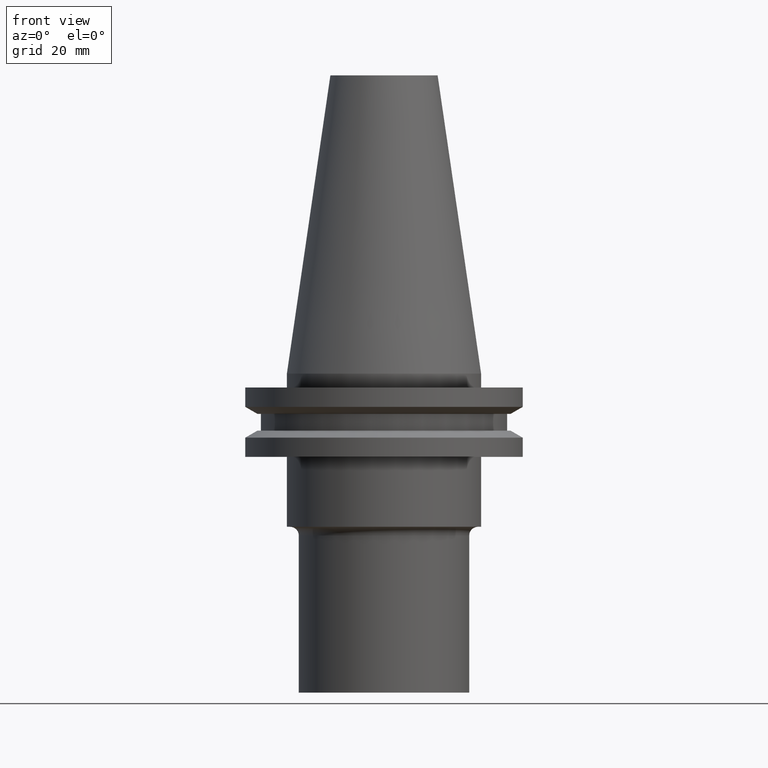
[diagram: clean part render]
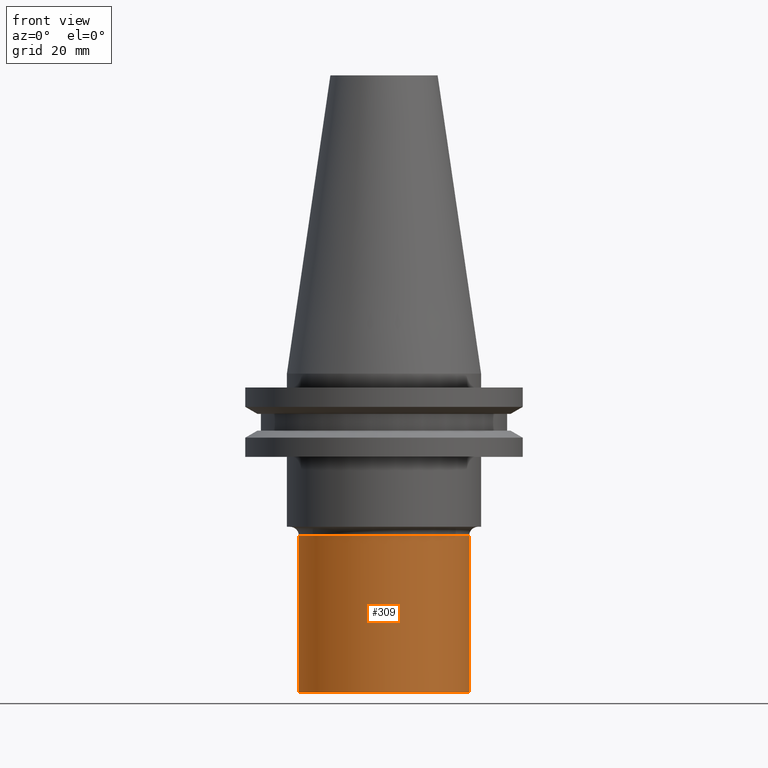
[diagram: same view with one face highlighted and labeled with its STEP entity id]
A machine part, front view. The second image highlights one B-rep face of the part: STEP entity #309.
In plain terms, the highlighted cylindrical surface (partial cylindrical patch) has radius 19.5 mm, axis along (-0, -0, 1).
Its self-contained STEP definition (entity closure, byte-faithful):
#6 = AXIS2_PLACEMENT_3D ( 'NONE', #472, #660, #467 ) ;
#16 = CIRCLE ( 'NONE', #6, 19.50000000000000000 ) ;
#19 = CIRCLE ( 'NONE', #151, 19.50000000000000000 ) ;
#29 = EDGE_CURVE ( 'NONE', #249, #703, #19, .T. ) ;
#37 = DIRECTION ( 'NONE',  ( -0.000000000000000000, -0.000000000000000000, 1.000000000000000000 ) ) ;
#56 = VERTEX_POINT ( 'NONE', #500 ) ;
#132 = ORIENTED_EDGE ( 'NONE', *, *, #580, .F. ) ;
#134 = DIRECTION ( 'NONE',  ( -0.000000000000000000, -0.000000000000000000, 1.000000000000000000 ) ) ;
#137 = DIRECTION ( 'NONE',  ( 1.000000000000000000, 0.000000000000000000, 0.000000000000000000 ) ) ;
#151 = AXIS2_PLACEMENT_3D ( 'NONE', #619, #134, #137 ) ;
#182 = CARTESIAN_POINT ( 'NONE',  ( 0.000000000000000000, 0.000000000000000000, 0.000000000000000000 ) ) ;
#206 = VECTOR ( 'NONE', #251, 1000.000000000000000 ) ;
#208 = CARTESIAN_POINT ( 'NONE',  ( -19.50000000000000000, 2.388061258337338939E-15, 0.000000000000000000 ) ) ;
#235 = LINE ( 'NONE', #655, #206 ) ;
#249 = VERTEX_POINT ( 'NONE', #693 ) ;
#251 = DIRECTION ( 'NONE',  ( -0.000000000000000000, -0.000000000000000000, 1.000000000000000000 ) ) ;
#309 = ADVANCED_FACE ( 'NONE', ( #422 ), #727, .T. ) ;
#335 = ORIENTED_EDGE ( 'NONE', *, *, #355, .F. ) ;
#355 = EDGE_CURVE ( 'NONE', #707, #56, #16, .T. ) ;
#421 = EDGE_CURVE ( 'NONE', #703, #56, #235, .T. ) ;
#422 = FACE_OUTER_BOUND ( 'NONE', #572, .T. ) ;
#467 = DIRECTION ( 'NONE',  ( 1.000000000000000000, 0.000000000000000000, 0.000000000000000000 ) ) ;
#472 = CARTESIAN_POINT ( 'NONE',  ( 0.000000000000000000, 0.000000000000000000, -37.04999999999999716 ) ) ;
#481 = ORIENTED_EDGE ( 'NONE', *, *, #29, .T. ) ;
#485 = VECTOR ( 'NONE', #37, 1000.000000000000000 ) ;
#500 = CARTESIAN_POINT ( 'NONE',  ( 19.50000000000000000, 0.000000000000000000, -37.04999999999999716 ) ) ;
#528 = DIRECTION ( 'NONE',  ( 1.000000000000000000, 0.000000000000000000, 0.000000000000000000 ) ) ;
#540 = ORIENTED_EDGE ( 'NONE', *, *, #421, .T. ) ;
#572 = EDGE_LOOP ( 'NONE', ( #132, #481, #540, #335 ) ) ;
#580 = EDGE_CURVE ( 'NONE', #249, #707, #746, .T. ) ;
#619 = CARTESIAN_POINT ( 'NONE',  ( 0.000000000000000000, 0.000000000000000000, -73.00000000000000000 ) ) ;
#655 = CARTESIAN_POINT ( 'NONE',  ( 19.50000000000000000, 0.000000000000000000, 0.000000000000000000 ) ) ;
#660 = DIRECTION ( 'NONE',  ( -0.000000000000000000, -0.000000000000000000, 1.000000000000000000 ) ) ;
#676 = CARTESIAN_POINT ( 'NONE',  ( 19.50000000000000000, 0.000000000000000000, -73.00000000000000000 ) ) ;
#680 = CARTESIAN_POINT ( 'NONE',  ( -19.50000000000000000, 2.388061258337338939E-15, -37.04999999999999716 ) ) ;
#693 = CARTESIAN_POINT ( 'NONE',  ( -19.50000000000000000, 2.388061258337338939E-15, -73.00000000000000000 ) ) ;
#703 = VERTEX_POINT ( 'NONE', #676 ) ;
#707 = VERTEX_POINT ( 'NONE', #680 ) ;
#721 = DIRECTION ( 'NONE',  ( -0.000000000000000000, -0.000000000000000000, 1.000000000000000000 ) ) ;
#723 = AXIS2_PLACEMENT_3D ( 'NONE', #182, #721, #528 ) ;
#727 = CYLINDRICAL_SURFACE ( 'NONE', #723, 19.50000000000000000 ) ;
#746 = LINE ( 'NONE', #208, #485 ) ;